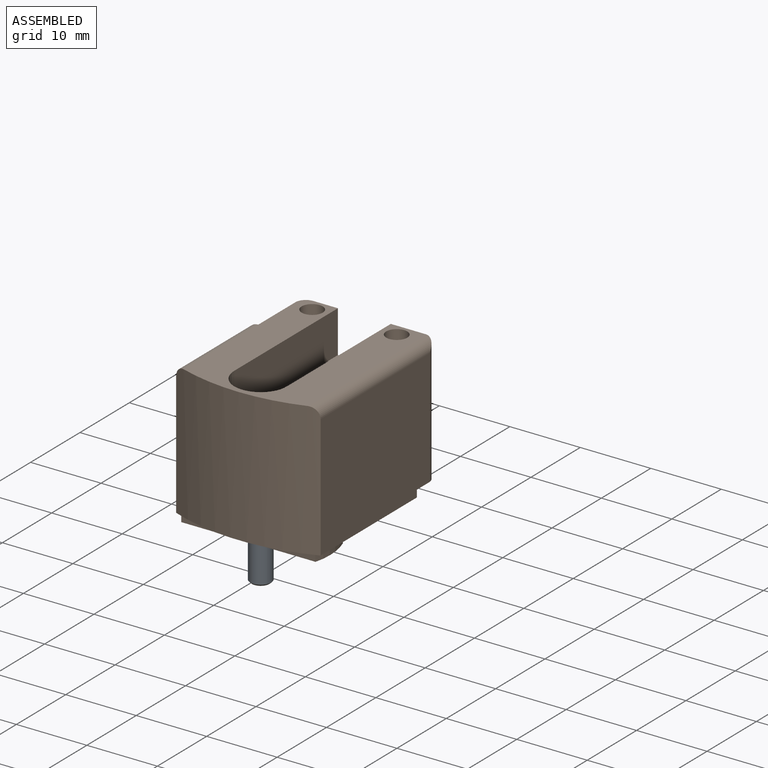
[diagram: assembled view]
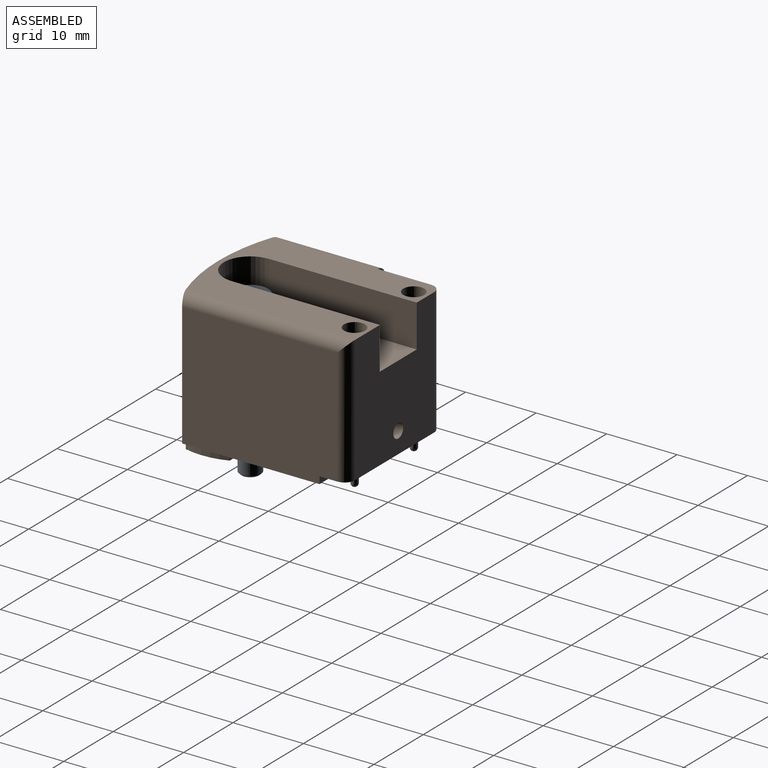
[diagram: assembled view, second angle]
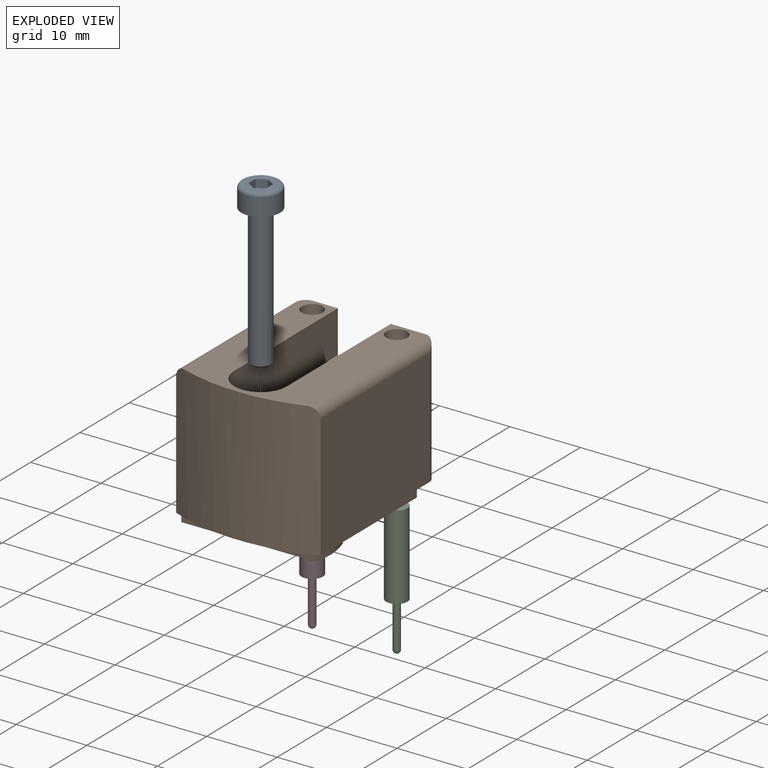
[diagram: exploded view]
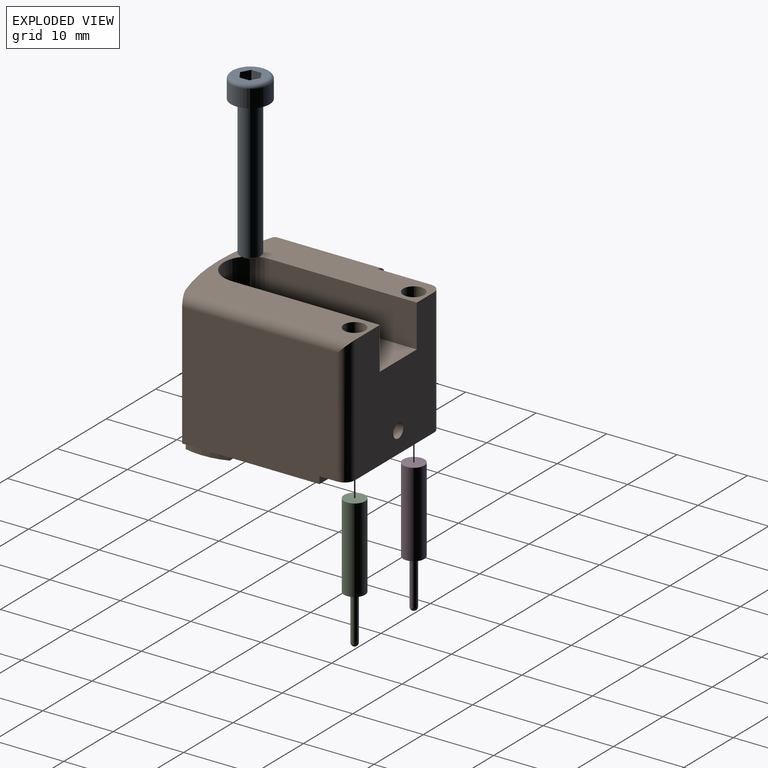
[diagram: exploded view, second angle]
ASSEMBLY  parts=4 mates=3
PART A: 14 faces, bbox 23x6x6 mm
  f0: plane 2.5x2.5mm, normal (1,0,0), area 4.9mm2, adj f6
  f1: cylinder r=1.5mm len=19.75mm, axis (-1,0,0), area 186.1mm2, adj f2,f6
  f2: plane 5.5x5.5mm, normal (1,0,0), area 16.7mm2, adj f1,f3
  f3: cylinder r=2.75mm len=5.5mm, axis (-1,0,0), area 43.2mm2, adj f2,f5
  f4: plane 4.5x4.5mm, normal (-1,0,0), area 10.5mm2, adj f5,f7,f8,f9,f10,f11,f12
  f5: torus R=2.25mm, axis (-1,0,0), area 12.7mm2, adj f3,f4
  f6: cone r=1.5mm half-angle=45deg, axis (-1,0,0), area 3.1mm2, adj f0,f1
  f7: plane 2x1.25mm, normal (0,0.87,-0.5), area 2.9mm2, adj f4,f8,f12,f13
  f8: plane 2x1.44mm, normal (0,0,-1), area 2.9mm2, adj f4,f7,f9,f13
  f9: plane 2x1.25mm, normal (0,-0.87,-0.5), area 2.9mm2, adj f4,f8,f10,f13
  f10: plane 2x1.25mm, normal (0,-0.87,0.5), area 2.9mm2, adj f4,f9,f11,f13
  f11: plane 2x1.44mm, normal (0,0,1), area 2.9mm2, adj f4,f10,f12,f13
  f12: plane 2x1.25mm, normal (0,0.87,0.5), area 2.9mm2, adj f4,f7,f11,f13
  f13: plane 2.89x2.5mm, normal (-1,0,0), area 5.4mm2, adj f7,f8,f9,f10,f11,f12
PART B: 32 faces, bbox 20.5x25.5x20 mm
  f0: cylinder r=3.75mm len=7.5mm, axis (0,0,-1), area 70.7mm2, adj f7,f17,f26,f27
  f1: plane 21.5x20.5mm, normal (0,0,1), area 303.6mm2, adj f3,f6,f8,f9,f10,f11,f12,f13
  f2: plane 18x16mm, normal (0,-1,0), area 239.9mm2, adj f7,f17,f23,f24,f26,f27,f28,f30
  f3: plane 22x17.5mm, normal (1,0,0), area 382.5mm2, adj f1,f8,f22,f23,f29,f30
  f4: cylinder r=0.5mm len=4.6mm, axis (0,0,-1), area 14.5mm2, adj f18,f23
  f5: cylinder r=0.5mm len=4.6mm, axis (0,0,-1), area 14.5mm2, adj f20,f23
  f6: plane 17.5x14.5mm, normal (-1,0,0), area 253.7mm2, adj f1,f8,f9,f31
  f7: plane 25.5x17.5mm, normal (0,0,-1), area 243.7mm2, adj f0,f2,f8,f10,f19,f21,f26,f27
  f8: cylinder r=27.27mm len=20.5mm, axis (0,0,1), area 398.3mm2, adj f1,f3,f6,f7,f29,f31
  f9: plane 19x1.5mm, normal (0,-1,0), area 28mm2, adj f1,f6,f10,f31
  f10: plane 19x7.5mm, normal (-1,0,0), area 140mm2, adj f1,f7,f9,f22,f23,f28
  f11: plane 19.06x1mm, normal (0,1,0), area 19.1mm2, adj f1,f12,f14,f15
  f12: cylinder r=9.85mm len=6mm, axis (0,0,-1), area 6.1mm2, adj f1,f11,f13,f15
  f13: plane 18.41x1mm, normal (0,-1,0), area 18.4mm2, adj f1,f12,f14,f15
  f14: cylinder r=9.85mm len=6mm, axis (0,0,-1), area 6.1mm2, adj f1,f11,f13,f15
  f15: plane 19.7x6mm, normal (0,0,1), area 111.3mm2, adj f11,f12,f13,f14,f16
  f16: cylinder r=1.25mm len=14mm, axis (0,0,-1), area 110mm2, adj f15,f17
  f17: plane 24.75x7.5mm, normal (0,0,-1), area 174.7mm2, adj f0,f2,f16,f26,f27
  f18: plane 3x3mm, normal (0,0,-1), area 6.3mm2, adj f4,f19
  f19: cylinder r=1.5mm len=13.4mm, axis (0,0,-1), area 126.3mm2, adj f7,f18
  f20: plane 3x3mm, normal (0,0,-1), area 6.3mm2, adj f5,f21
  f21: cylinder r=1.5mm len=13.4mm, axis (0,0,-1), area 126.3mm2, adj f7,f20
  f22: plane 19x1mm, normal (0,-1,0), area 19mm2, adj f1,f3,f10,f23
  f23: plane 19x4mm, normal (0,0,1), area 73.5mm2, adj f2,f3,f4,f5,f10,f22,f28,f30
  f24: cylinder r=1mm len=3mm, axis (0,-1,0), area 18.8mm2, adj f2,f25
  f25: plane 2x2mm, normal (0,-1,0), area 3.1mm2, adj f24
  f26: plane 21x6mm, normal (1,0,0), area 126mm2, adj f0,f2,f7,f17
  f27: plane 21x6mm, normal (-1,0,0), area 126mm2, adj f0,f2,f7,f17
  f28: cylinder r=1.5mm len=18mm, axis (0,0,-1), area 42.4mm2, adj f2,f7,f10,f23
  f29: cylinder r=1.5mm len=24.06mm, axis (0,1,0), area 54.6mm2, adj f3,f7,f8,f30
  f30: cylinder r=1.5mm len=18mm, axis (0,0,1), area 41.1mm2, adj f2,f3,f23,f29
  f31: cylinder r=1.5mm len=15.06mm, axis (0,-1,0), area 34.7mm2, adj f6,f7,f8,f9
PART C: 5 faces, bbox 19x3x3 mm
  f0: cylinder r=0.5mm len=6.5mm, axis (-1,0,0), area 20.4mm2, adj f1,f4
  f1: plane 3x3mm, normal (1,0,0), area 6.3mm2, adj f0,f2
  f2: cylinder r=1.5mm len=12mm, axis (-1,0,0), area 113.1mm2, adj f1,f3
  f3: plane 3x3mm, normal (-1,0,0), area 7.1mm2, adj f2
  f4: sphere r=0.5mm, area 1.6mm2, adj f0
PART D: same geometry as C
PLACE A rot(axis=(0.71,0,-0.71),180deg) t=(-0.23,-8.7,13)mm
PLACE B rot(axis=(1,0,0),180deg) t=(-0.23,0.55,19)mm
PLACE C rot(axis=(0.71,0,-0.71),180deg) t=(5.77,10.3,5.6)mm
PLACE D rot(axis=(0.71,0,-0.71),180deg) t=(-6.23,10.3,5.6)mm
MATE fastened D.f0 <-> B.f5  axis (0,0,-1) through (-6.23,10.3,5.6)mm
MATE fastened C.f0 <-> B.f4  axis (0,0,-1) through (5.77,10.3,5.6)mm
MATE fastened A.f1 <-> B.f0  axis (0,0,-1) through (-0.23,-8.7,13)mm
